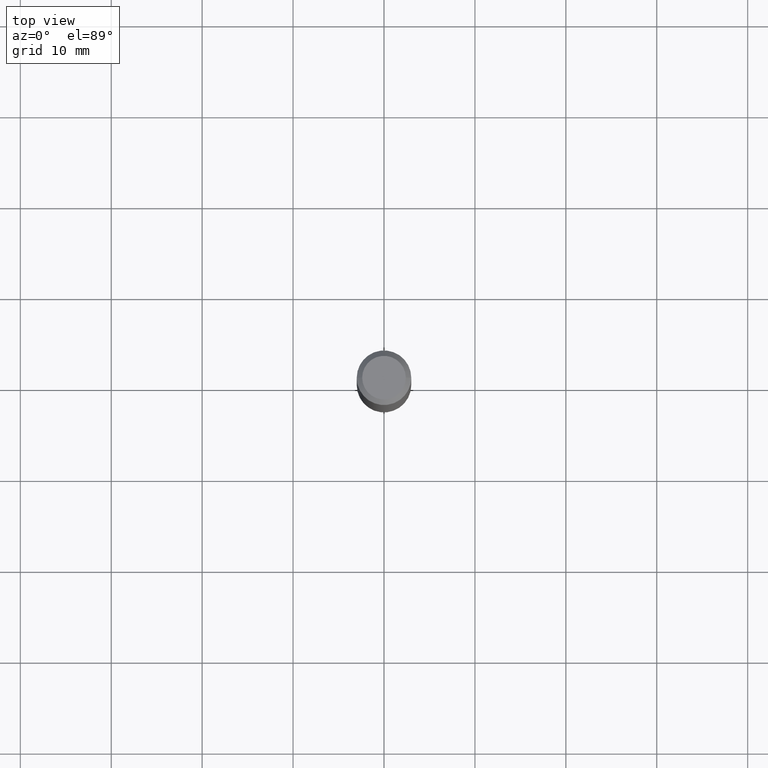
[diagram: clean part render]
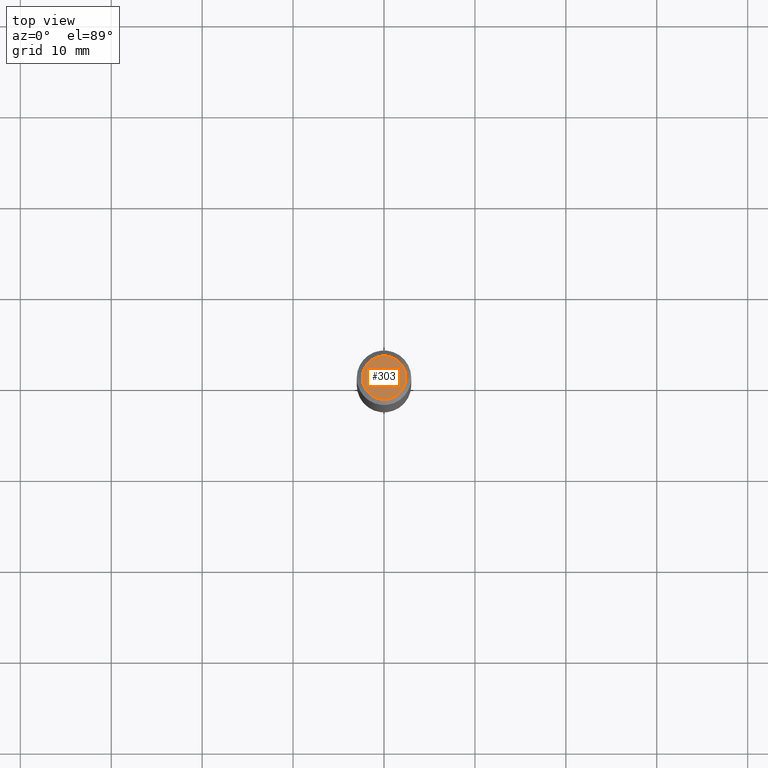
[diagram: same view with one face highlighted and labeled with its STEP entity id]
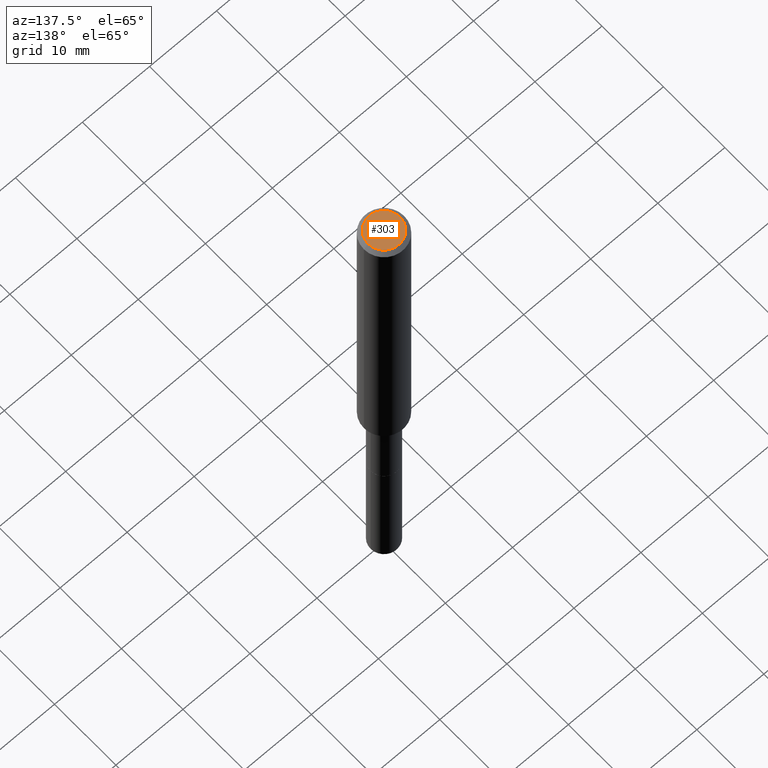
[diagram: same view with one face highlighted and labeled with its STEP entity id]
A machine part, top view. The second image highlights one B-rep face of the part: STEP entity #303.
A second angle (auxiliary view) of the same face is appended — the face is thin or edge-on in the first view.
In plain terms, the highlighted planar face has unit normal (0, -0, -1).
Its self-contained STEP definition (entity closure, byte-faithful):
#5 = CARTESIAN_POINT ( 'NONE',  ( 3.772893820736570314E-46, -5.386692455541008845E-32, -1.542810037565835988E-17 ) ) ;
#6 = ORIENTED_EDGE ( 'NONE', *, *, #74, .T. ) ;
#34 = CARTESIAN_POINT ( 'NONE',  ( -0.09447999999999998066, 7.009847083995354710E-16, -3.085620075132147757E-17 ) ) ;
#40 = PLANE ( 'NONE',  #422 ) ;
#47 = CIRCLE ( 'NONE', #201, 0.09447999999999998066 ) ;
#74 = EDGE_CURVE ( 'NONE', #204, #165, #413, .T. ) ;
#93 = DIRECTION ( 'NONE',  ( 1.000000000000000000, -6.982962677686267499E-15, 4.875432709231658792E-29 ) ) ;
#127 = DIRECTION ( 'NONE',  ( 1.000000000000000000, -6.982962677686267499E-15, 4.875432709231658792E-29 ) ) ;
#165 = VERTEX_POINT ( 'NONE', #236 ) ;
#169 = EDGE_LOOP ( 'NONE', ( #6, #183 ) ) ;
#183 = ORIENTED_EDGE ( 'NONE', *, *, #404, .T. ) ;
#188 = DIRECTION ( 'NONE',  ( -2.445468806185136597E-29, 3.491481338843145583E-15, 1.000000000000000000 ) ) ;
#201 = AXIS2_PLACEMENT_3D ( 'NONE', #367, #476, #127 ) ;
#204 = VERTEX_POINT ( 'NONE', #34 ) ;
#236 = CARTESIAN_POINT ( 'NONE',  ( 0.09447999999999998066, -7.704367267948738690E-16, -3.085620075131172158E-17 ) ) ;
#303 = ADVANCED_FACE ( 'NONE', ( #327 ), #40, .F. ) ;
#327 = FACE_OUTER_BOUND ( 'NONE', #169, .T. ) ;
#360 = DIRECTION ( 'NONE',  ( 2.438088387897960049E-29, -3.491481338843145188E-15, -1.000000000000000000 ) ) ;
#367 = CARTESIAN_POINT ( 'NONE',  ( 7.545787641473140628E-46, -1.077338491108201769E-31, -3.085620075131671975E-17 ) ) ;
#370 = DIRECTION ( 'NONE',  ( -1.000000000000000000, 6.982962677686265922E-15, -4.876176775795935793E-29 ) ) ;
#404 = EDGE_CURVE ( 'NONE', #165, #204, #47, .T. ) ;
#413 = CIRCLE ( 'NONE', #497, 0.09447999999999998066 ) ;
#422 = AXIS2_PLACEMENT_3D ( 'NONE', #5, #360, #370 ) ;
#476 = DIRECTION ( 'NONE',  ( -2.445468806185136597E-29, 3.491481338843145583E-15, 1.000000000000000000 ) ) ;
#497 = AXIS2_PLACEMENT_3D ( 'NONE', #502, #188, #93 ) ;
#502 = CARTESIAN_POINT ( 'NONE',  ( 7.545787641473140628E-46, -1.077338491108201769E-31, -3.085620075131671975E-17 ) ) ;